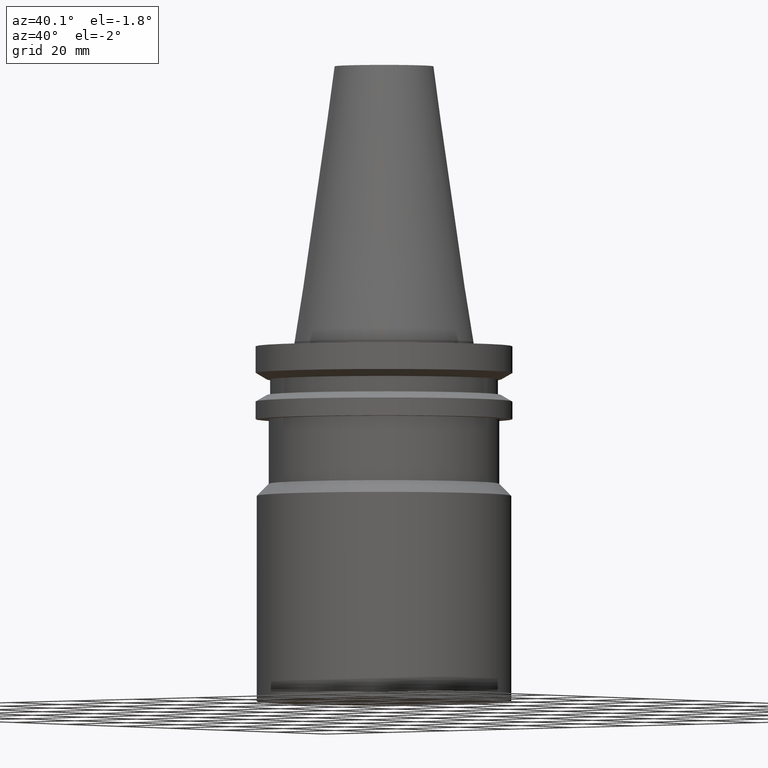
[diagram: clean part render]
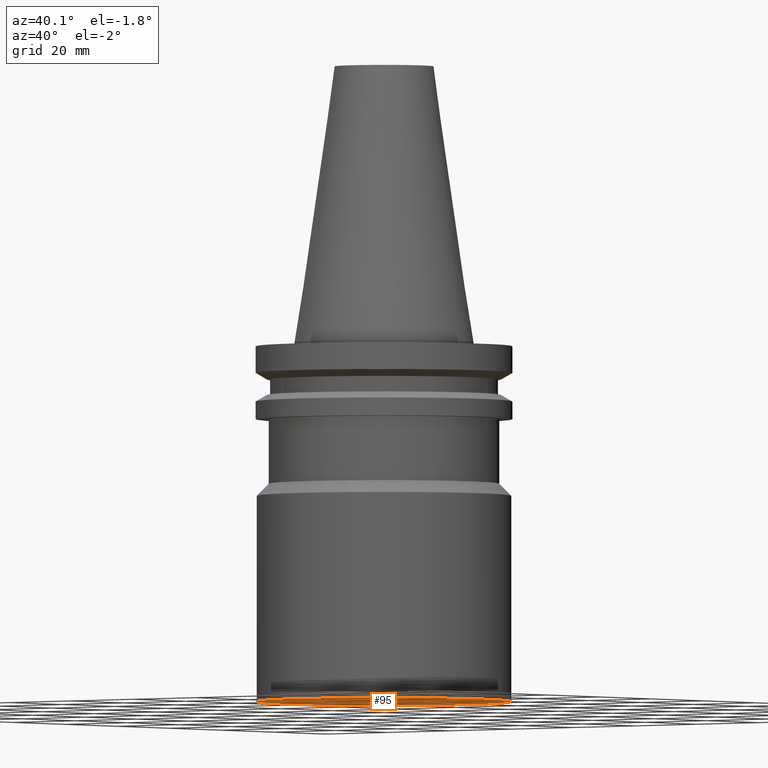
[diagram: same view with one face highlighted and labeled with its STEP entity id]
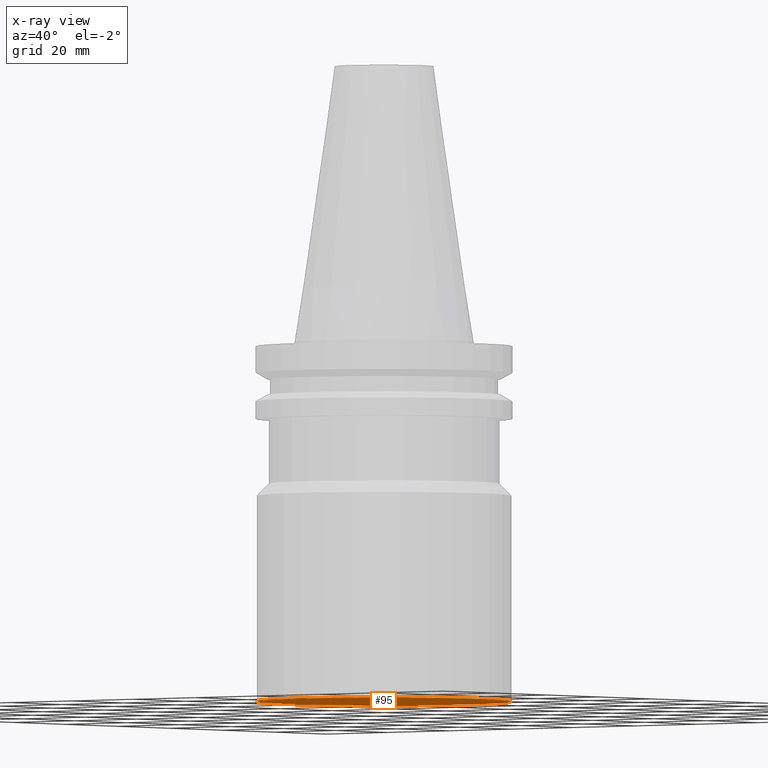
[diagram: x-ray of the same camera — body ghosted, the highlighted face saturated]
A machine part, auxiliary view. The second image highlights one B-rep face of the part: STEP entity #95.
The next image is the same camera in x-ray: the body ghosted, the highlighted face saturated — about 0% of this face is hidden behind the body in this view.
In plain terms, the highlighted planar face has unit normal (0, 0, -1).
Its self-contained STEP definition (entity closure, byte-faithful):
#70=EDGE_CURVE('Unnamed[1]',#175,#175,#176,.T.);
#95=ADVANCED_FACE('Unnamed[1]',(#213),#214,.T.);
#175=VERTEX_POINT('',#314);
#176=CIRCLE('',#315,31.5);
#213=FACE_OUTER_BOUND('',#360,.T.);
#214=PLANE('',#361);
#314=CARTESIAN_POINT('',(5.44355502220998E-015,31.5,-88.8999999999999));
#315=AXIS2_PLACEMENT_3D('',#466,#467,#468);
#360=EDGE_LOOP('',(#507));
#361=AXIS2_PLACEMENT_3D('',#508,#509,#510);
#466=CARTESIAN_POINT('',(5.44355502220998E-015,7.84207820852682E-015,-88.8999999999999));
#467=DIRECTION('',(6.12323399573677E-017,4.57083562979919E-016,-1.0));
#468=DIRECTION('',(-3.28154488480798E-032,1.0,4.57083562979919E-016));
#507=ORIENTED_EDGE('',*,*,#70,.T.);
#508=CARTESIAN_POINT('',(5.44355502220998E-015,15.75,-88.8999999999999));
#509=DIRECTION('',(6.12323399573677E-017,2.82929414947702E-015,-1.0));
#510=DIRECTION('',(-1.78071453930937E-031,1.0,2.82929414947702E-015));